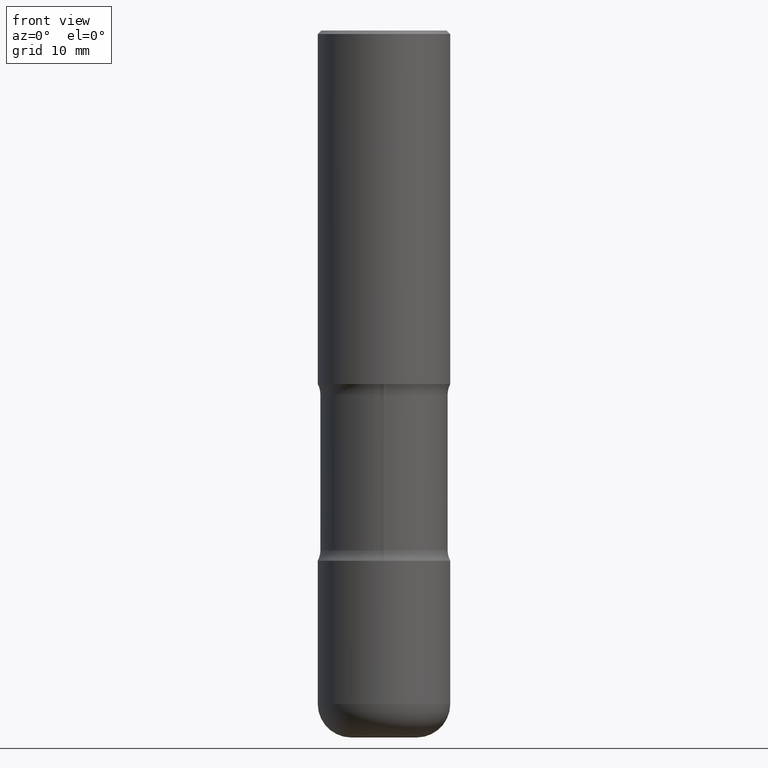
[diagram: clean part render]
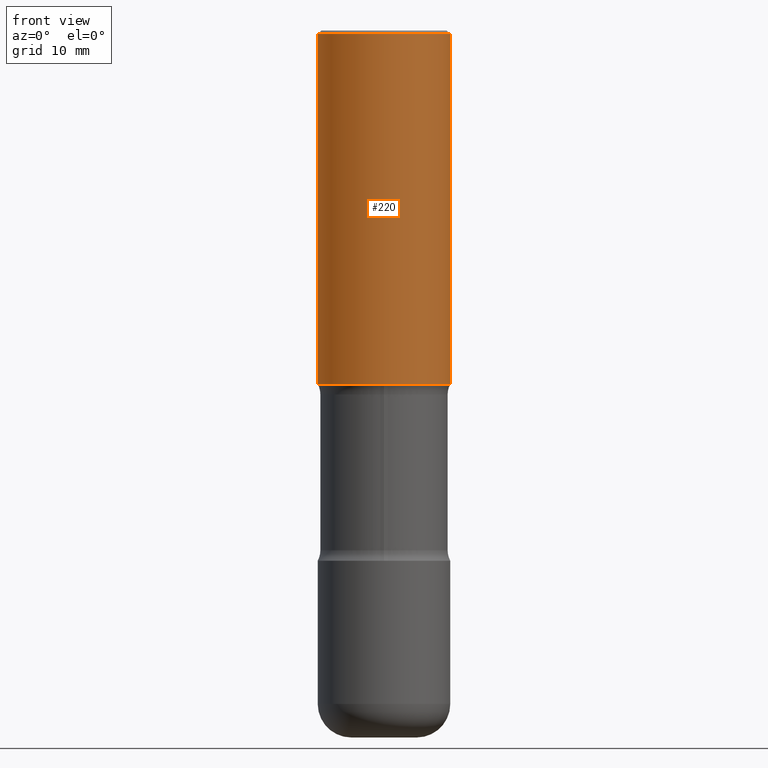
[diagram: same view with one face highlighted and labeled with its STEP entity id]
A machine part, front view. The second image highlights one B-rep face of the part: STEP entity #220.
In plain terms, the highlighted cylindrical surface (partial cylindrical patch) has radius 9.525 mm, axis along (-0, 0, 1).
Its self-contained STEP definition (entity closure, byte-faithful):
#12 = DIRECTION ( 'NONE',  ( 1.000000000000000000, -6.982962677686266711E-15, 0.000000000000000000 ) ) ;
#20 = AXIS2_PLACEMENT_3D ( 'NONE', #103, #428, #364 ) ;
#43 = EDGE_CURVE ( 'NONE', #538, #443, #95, .T. ) ;
#56 = EDGE_CURVE ( 'NONE', #135, #538, #582, .T. ) ;
#84 = DIRECTION ( 'NONE',  ( -2.445468806185136597E-29, 3.491481338843145583E-15, 1.000000000000000000 ) ) ;
#95 = CIRCLE ( 'NONE', #688, 0.3749999999999996669 ) ;
#103 = CARTESIAN_POINT ( 'NONE',  ( 0.000000000000000000, 0.000000000000000000, 0.000000000000000000 ) ) ;
#107 = CARTESIAN_POINT ( 'NONE',  ( 0.3749999999999996669, -2.642516375941185662E-15, -0.02000000000000007674 ) ) ;
#119 = ORIENTED_EDGE ( 'NONE', *, *, #429, .T. ) ;
#135 = VERTEX_POINT ( 'NONE', #191 ) ;
#148 = CARTESIAN_POINT ( 'NONE',  ( 4.890937612370292426E-31, -6.982962677686317493E-17, -0.02000000000000007674 ) ) ;
#163 = CARTESIAN_POINT ( 'NONE',  ( 0.3750000000000000555, -9.601573681818640393E-15, -2.000000000000000000 ) ) ;
#170 = VECTOR ( 'NONE', #632, 39.37007874015748143 ) ;
#171 = ORIENTED_EDGE ( 'NONE', *, *, #43, .F. ) ;
#185 = VERTEX_POINT ( 'NONE', #163 ) ;
#187 = DIRECTION ( 'NONE',  ( 1.000000000000000000, -6.982962677686264344E-15, 0.000000000000000000 ) ) ;
#191 = CARTESIAN_POINT ( 'NONE',  ( -0.3749999999999999445, -8.618608931312003514E-16, -2.000000000000000000 ) ) ;
#220 = ADVANCED_FACE ( 'NONE', ( #411 ), #515, .T. ) ;
#224 = LINE ( 'NONE', #486, #774 ) ;
#232 = ORIENTED_EDGE ( 'NONE', *, *, #56, .F. ) ;
#275 = CIRCLE ( 'NONE', #666, 0.3750000000000000555 ) ;
#283 = DIRECTION ( 'NONE',  ( -2.445468806185136597E-29, 3.491481338843145583E-15, 1.000000000000000000 ) ) ;
#364 = DIRECTION ( 'NONE',  ( 1.000000000000000000, -6.982962677686265922E-15, 4.876176775795935793E-29 ) ) ;
#377 = ORIENTED_EDGE ( 'NONE', *, *, #574, .T. ) ;
#411 = FACE_OUTER_BOUND ( 'NONE', #741, .T. ) ;
#428 = DIRECTION ( 'NONE',  ( -2.445468806185136597E-29, 3.491481338843145583E-15, 1.000000000000000000 ) ) ;
#429 = EDGE_CURVE ( 'NONE', #185, #443, #224, .T. ) ;
#443 = VERTEX_POINT ( 'NONE', #107 ) ;
#486 = CARTESIAN_POINT ( 'NONE',  ( 0.3749999999999998335, -2.618611004132348439E-15, 1.828566290923475082E-29 ) ) ;
#515 = CYLINDRICAL_SURFACE ( 'NONE', #20, 0.3749999999999998335 ) ;
#526 = CARTESIAN_POINT ( 'NONE',  ( 4.890937612370273194E-29, -6.982962677686291165E-15, -2.000000000000000000 ) ) ;
#538 = VERTEX_POINT ( 'NONE', #592 ) ;
#574 = EDGE_CURVE ( 'NONE', #135, #185, #275, .T. ) ;
#582 = LINE ( 'NONE', #753, #170 ) ;
#592 = CARTESIAN_POINT ( 'NONE',  ( -0.3749999999999996669, 2.548781377355484352E-15, -0.02000000000000007674 ) ) ;
#632 = DIRECTION ( 'NONE',  ( -2.445468806185136877E-29, 3.491481338843145188E-15, 1.000000000000000000 ) ) ;
#666 = AXIS2_PLACEMENT_3D ( 'NONE', #526, #283, #187 ) ;
#688 = AXIS2_PLACEMENT_3D ( 'NONE', #148, #84, #12 ) ;
#725 = DIRECTION ( 'NONE',  ( -2.445468806185136877E-29, 3.491481338843145188E-15, 1.000000000000000000 ) ) ;
#741 = EDGE_LOOP ( 'NONE', ( #232, #377, #119, #171 ) ) ;
#753 = CARTESIAN_POINT ( 'NONE',  ( -0.3749999999999998335, 2.664535259100374514E-15, -1.844600658845588757E-29 ) ) ;
#774 = VECTOR ( 'NONE', #725, 39.37007874015748143 ) ;